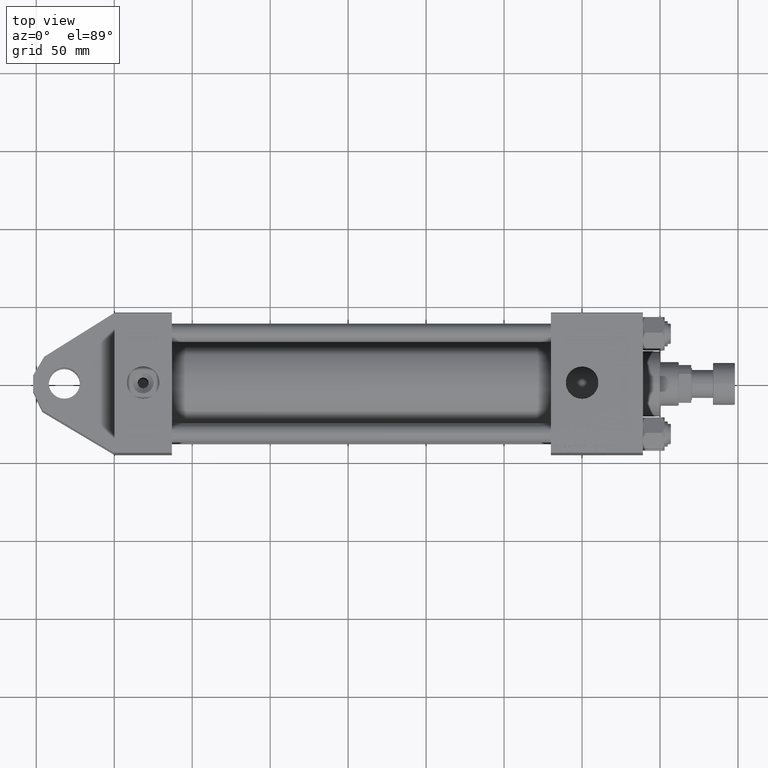
[diagram: clean part render]
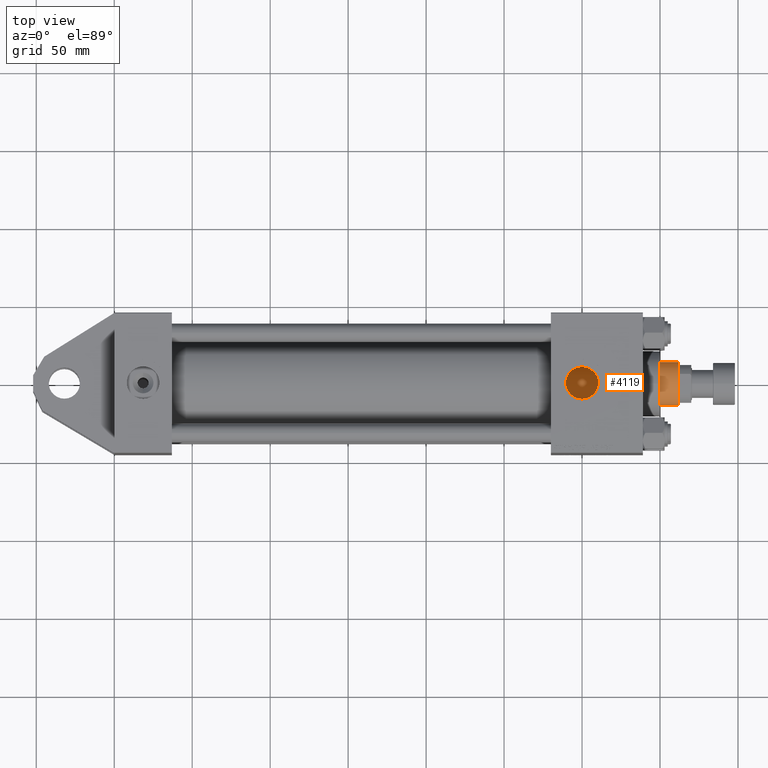
[diagram: same view with one face highlighted and labeled with its STEP entity id]
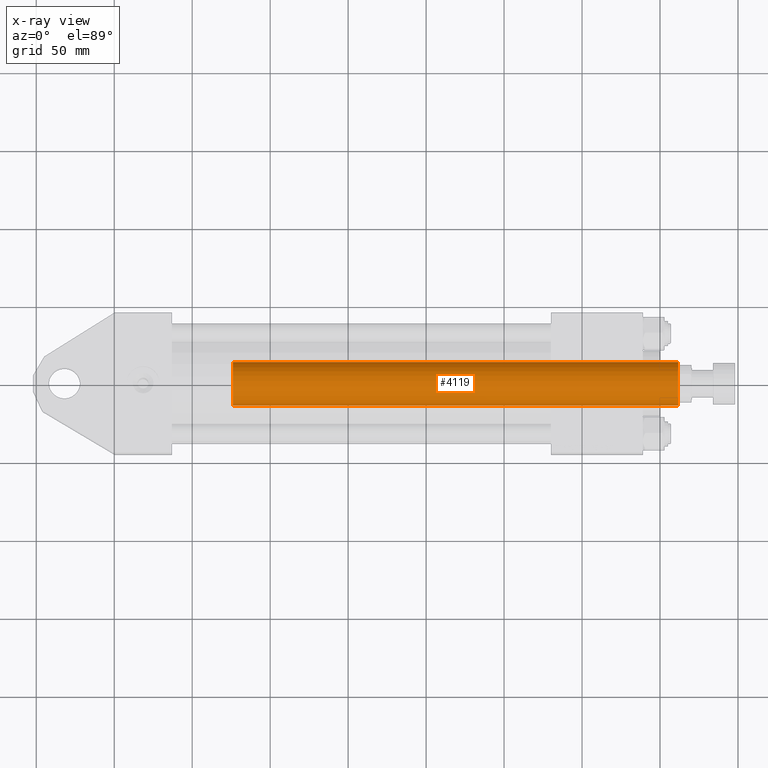
[diagram: x-ray of the same camera — body ghosted, the highlighted face saturated]
A machine part, top view. The second image highlights one B-rep face of the part: STEP entity #4119.
The next image is the same camera in x-ray: the body ghosted, the highlighted face saturated — about 0% of this face is hidden behind the body in this view.
In plain terms, the highlighted cylindrical surface (edge-blend (fillet) strip) has radius 14 mm, axis along (-1, 0, 0).
Its self-contained STEP definition (entity closure, byte-faithful):
#183 = DIRECTION ( 'NONE',  ( 0.000000000000000000, 0.000000000000000000, -1.000000000000000000 ) ) ;
#3744 = DIRECTION ( 'NONE',  ( 0.000000000000000000, 0.000000000000000000, 1.000000000000000000 ) ) ;
#4119 = ADVANCED_FACE ( 'NONE', ( #15764 ), #16545, .T. ) ;
#8156 = DIRECTION ( 'NONE',  ( -0.000000000000000000, -0.000000000000000000, -1.000000000000000000 ) ) ;
#8705 = ORIENTED_EDGE ( 'NONE', *, *, #43254, .F. ) ;
#10219 = ORIENTED_EDGE ( 'NONE', *, *, #42515, .T. ) ;
#10887 = AXIS2_PLACEMENT_3D ( 'NONE', #36342, #16288, #12322 ) ;
#12322 = DIRECTION ( 'NONE',  ( -1.000000000000000000, 0.000000000000000000, 0.000000000000000000 ) ) ;
#12677 = VERTEX_POINT ( 'NONE', #27414 ) ;
#15050 = CARTESIAN_POINT ( 'NONE',  ( -14.00000000000000178, 0.000000000000000000, 324.9999999999999432 ) ) ;
#15575 = LINE ( 'NONE', #15050, #33253 ) ;
#15764 = FACE_OUTER_BOUND ( 'NONE', #17437, .T. ) ;
#16288 = DIRECTION ( 'NONE',  ( -0.000000000000000000, -0.000000000000000000, -1.000000000000000000 ) ) ;
#16314 = DIRECTION ( 'NONE',  ( 1.000000000000000000, 0.000000000000000000, 0.000000000000000000 ) ) ;
#16545 = CYLINDRICAL_SURFACE ( 'NONE', #10887, 14.00000000000000178 ) ;
#17224 = LINE ( 'NONE', #24623, #25501 ) ;
#17437 = EDGE_LOOP ( 'NONE', ( #8705, #36322, #47276, #10219 ) ) ;
#18218 = EDGE_CURVE ( 'NONE', #21252, #36243, #31501, .T. ) ;
#21252 = VERTEX_POINT ( 'NONE', #36979 ) ;
#21267 = CIRCLE ( 'NONE', #37280, 14.00000000000000178 ) ;
#23001 = CARTESIAN_POINT ( 'NONE',  ( -14.00000000000000178, 0.000000000000000000, 324.4999999999999432 ) ) ;
#24623 = CARTESIAN_POINT ( 'NONE',  ( 14.00000000000000178, 1.714505518806294835E-15, 324.9999999999999432 ) ) ;
#25501 = VECTOR ( 'NONE', #40724, 1000.000000000000000 ) ;
#27274 = DIRECTION ( 'NONE',  ( 1.000000000000000000, 0.000000000000000000, 0.000000000000000000 ) ) ;
#27414 = CARTESIAN_POINT ( 'NONE',  ( -14.00000000000000178, 0.000000000000000000, 39.00000000000000000 ) ) ;
#31501 = CIRCLE ( 'NONE', #34895, 14.00000000000000178 ) ;
#33253 = VECTOR ( 'NONE', #8156, 1000.000000000000000 ) ;
#34895 = AXIS2_PLACEMENT_3D ( 'NONE', #45091, #183, #16314 ) ;
#36243 = VERTEX_POINT ( 'NONE', #23001 ) ;
#36322 = ORIENTED_EDGE ( 'NONE', *, *, #18218, .T. ) ;
#36342 = CARTESIAN_POINT ( 'NONE',  ( 0.000000000000000000, 0.000000000000000000, 324.9999999999999432 ) ) ;
#36979 = CARTESIAN_POINT ( 'NONE',  ( 14.00000000000000178, 1.714505518806294835E-15, 324.4999999999999432 ) ) ;
#37280 = AXIS2_PLACEMENT_3D ( 'NONE', #38889, #3744, #27274 ) ;
#38889 = CARTESIAN_POINT ( 'NONE',  ( 0.000000000000000000, 0.000000000000000000, 39.00000000000000000 ) ) ;
#39344 = CARTESIAN_POINT ( 'NONE',  ( 14.00000000000000178, 1.714505518806294835E-15, 39.00000000000000000 ) ) ;
#40724 = DIRECTION ( 'NONE',  ( -0.000000000000000000, -0.000000000000000000, -1.000000000000000000 ) ) ;
#42515 = EDGE_CURVE ( 'NONE', #12677, #43450, #21267, .T. ) ;
#43254 = EDGE_CURVE ( 'NONE', #21252, #43450, #17224, .T. ) ;
#43450 = VERTEX_POINT ( 'NONE', #39344 ) ;
#45091 = CARTESIAN_POINT ( 'NONE',  ( 0.000000000000000000, 0.000000000000000000, 324.4999999999999432 ) ) ;
#47276 = ORIENTED_EDGE ( 'NONE', *, *, #47624, .T. ) ;
#47624 = EDGE_CURVE ( 'NONE', #36243, #12677, #15575, .T. ) ;